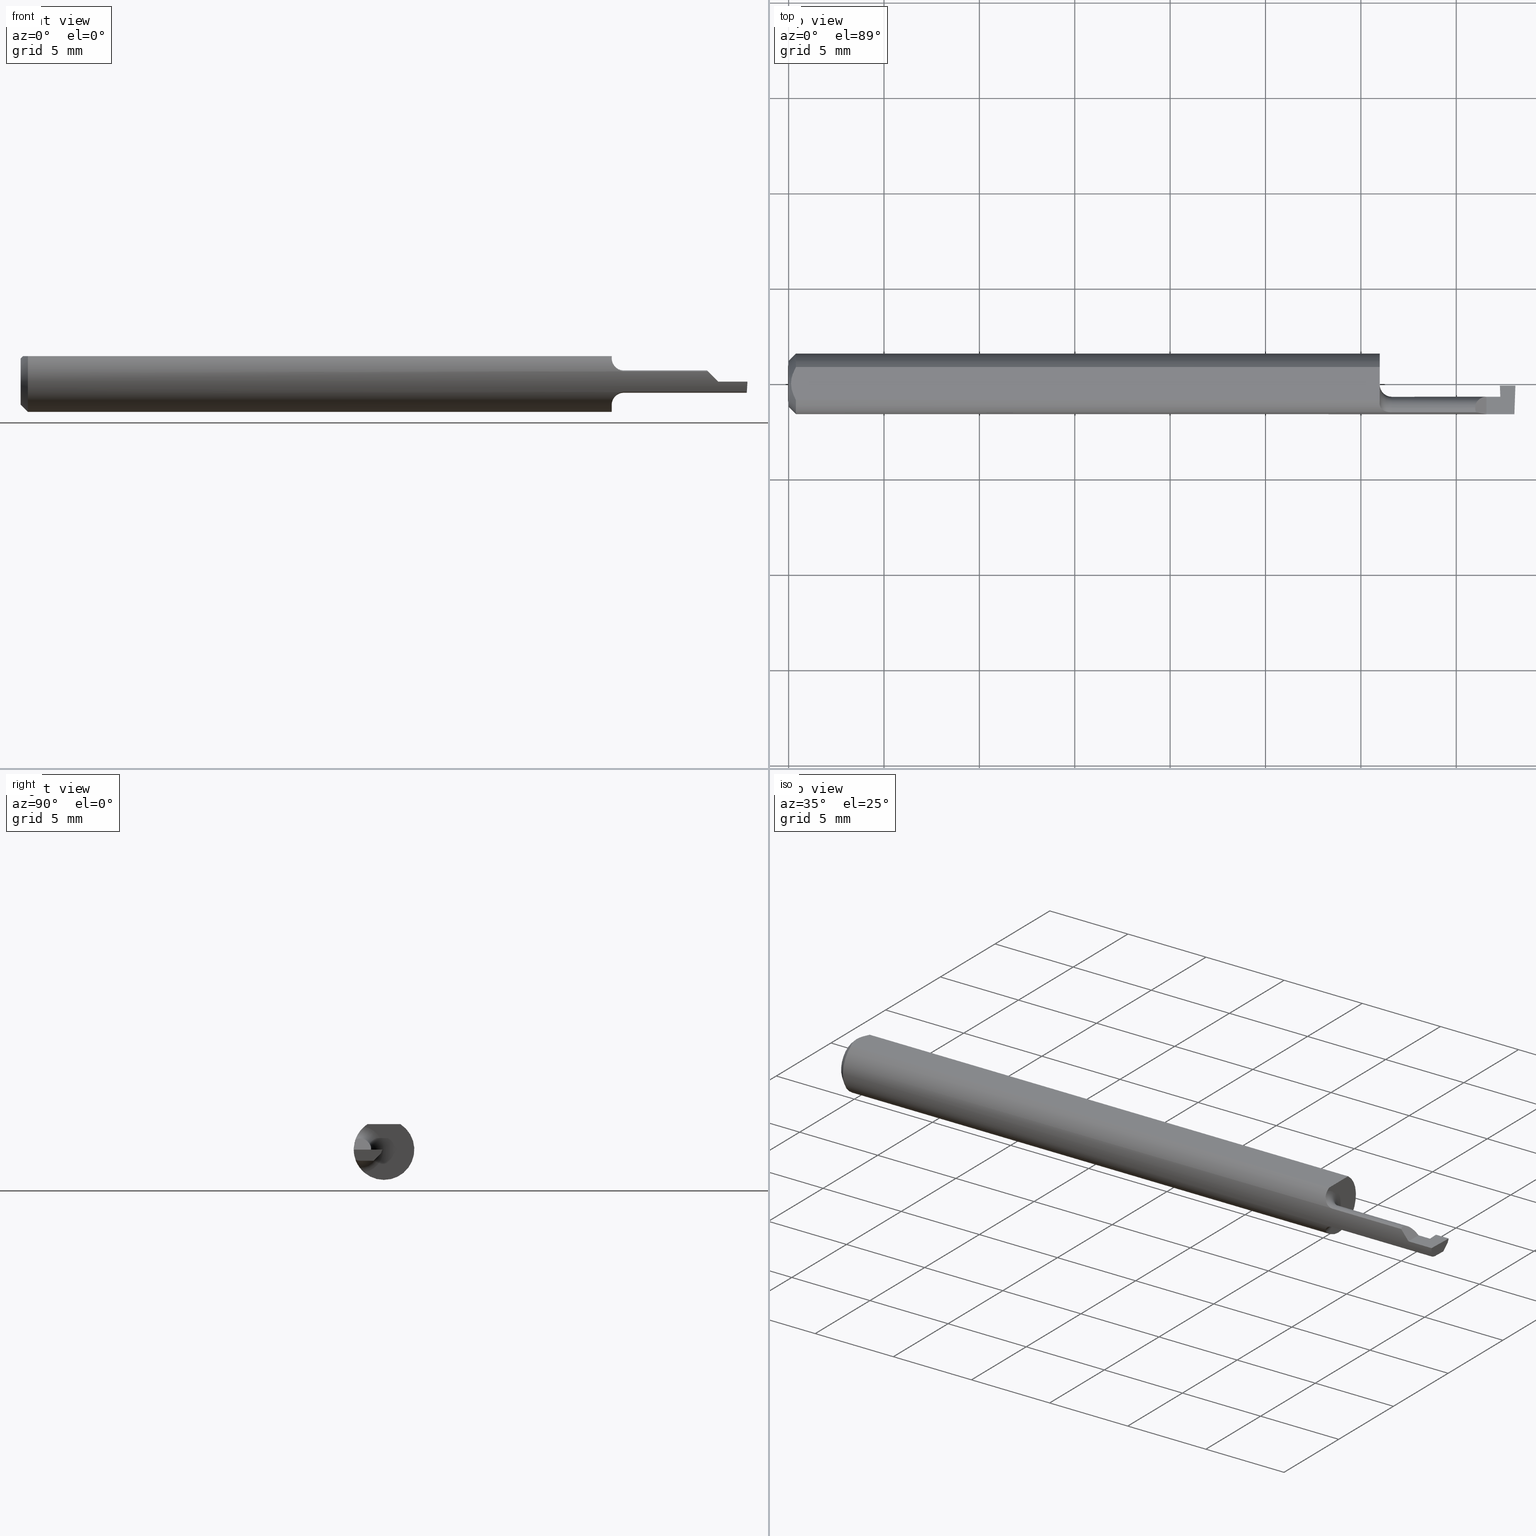
[diagram: canonical four-view strip — front | top / right | iso, engineering-drawing reading convention]
A machine part, canonical four-view strip (front | top / right | iso — engineering-drawing reading convention). The complete STEP part file that produces these views, byte-faithful:
ISO-10303-21;
HEADER;
FILE_DESCRIPTION (( 'STEP AP203' ),
    '1' );
FILE_NAME ('220554-GT031-4.STEP',
    '2024-07-12T18:00:18',
    ( '' ),
    ( '' ),
    'SwSTEP 2.0',
    'SolidWorks 2024',
    '' );
FILE_SCHEMA (( 'CONFIG_CONTROL_DESIGN' ));
ENDSEC;

DATA;
#1 = ORIENTED_EDGE ( 'NONE', *, *, #558, .F. ) ;
#2 = CARTESIAN_POINT ( 'NONE',  ( 1.220000000000000195, 0.07349999999999999589, 0.000000000000000000 ) ) ;
#3 = FACE_OUTER_BOUND ( 'NONE', #206, .T. ) ;
#4 = EDGE_CURVE ( 'NONE', #184, #454, #106, .T. ) ;
#5 = FACE_OUTER_BOUND ( 'NONE', #340, .T. ) ;
#6 = EDGE_CURVE ( 'NONE', #302, #68, #17, .T. ) ;
#7 = CARTESIAN_POINT ( 'NONE',  ( 1.469608973969656729, 0.05811540449146365001, -0.02300000000000001349 ) ) ;
#8 = VECTOR ( 'NONE', #436, 39.37007874015748143 ) ;
#9 = CARTESIAN_POINT ( 'NONE',  ( 1.497584964514770078, -0.05590579956362994041, -0.02232605334347043113 ) ) ;
#10 = DIRECTION ( 'NONE',  ( -0.7071067811865461294, 0.000000000000000000, 0.7071067811865489050 ) ) ;
#11 = CC_DESIGN_DATE_AND_TIME_ASSIGNMENT ( #145, #687, ( #585 ) ) ;
#12 = AXIS2_PLACEMENT_3D ( 'NONE', #531, #46, #538 ) ;
#13 = CARTESIAN_POINT ( 'NONE',  ( 1.499863463850860112, -0.004823293866947624131, -0.003447298382161623643 ) ) ;
#14 = CARTESIAN_POINT ( 'NONE',  ( 0.01499999999999999944, -0.03391164991562636150, 0.05249999999999998418 ) ) ;
#15 = VERTEX_POINT ( 'NONE', #532 ) ;
#16 = APPROVAL_STATUS ( 'not_yet_approved' ) ;
#17 = B_SPLINE_CURVE_WITH_KNOTS ( 'NONE', 3,
 ( #103, #485, #470, #208, #318, #148 ),
 .UNSPECIFIED., .F., .F.,
 ( 4, 2, 4 ),
 ( 0.0009797930073890425730, 0.001428868798926340253, 0.001877944590463637717 ),
 .UNSPECIFIED. ) ;
#18 = FACE_OUTER_BOUND ( 'NONE', #472, .T. ) ;
#19 = CC_DESIGN_APPROVAL ( #674, ( #621 ) ) ;
#20 = VERTEX_POINT ( 'NONE', #645 ) ;
#21 = CALENDAR_DATE ( 2024, 12, 7 ) ;
#22 = CARTESIAN_POINT ( 'NONE',  ( 1.418992327257652342, -0.05886363636363636798, 0.02100767274234790691 ) ) ;
#23 = ORIENTED_EDGE ( 'NONE', *, *, #315, .F. ) ;
#24 = AXIS2_PLACEMENT_3D ( 'NONE', #90, #157, #418 ) ;
#25 = PERSON_AND_ORGANIZATION ( #467, #31 ) ;
#26 = LINE ( 'NONE', #241, #252 ) ;
#27 = EDGE_LOOP ( 'NONE', ( #553, #540, #614, #571, #151 ) ) ;
#28 = CARTESIAN_POINT ( 'NONE',  ( 1.244999999999999885, -0.05886363636363634022, -0.02100767274234791038 ) ) ;
#29 = ADVANCED_FACE ( 'NONE', ( #703 ), #214, .T. ) ;
#30 = ORIENTED_EDGE ( 'NONE', *, *, #691, .F. ) ;
#31 = ORGANIZATION ( 'UNSPECIFIED', 'UNSPECIFIED', '' ) ;
#32 = DIRECTION ( 'NONE',  ( 1.000000000000000000, -0.000000000000000000, -0.000000000000000000 ) ) ;
#33 = LINE ( 'NONE', #570, #78 ) ;
#34 = VERTEX_POINT ( 'NONE', #92 ) ;
#35 = CARTESIAN_POINT ( 'NONE',  ( 1.469272891122366254, -0.02649999999999999925, -0.01347308806541881558 ) ) ;
#36 = EDGE_LOOP ( 'NONE', ( #122, #356, #631, #700, #344, #144, #30, #125, #392, #528, #513, #460, #327, #89, #622, #289 ) ) ;
#37 = EDGE_CURVE ( 'NONE', #454, #34, #325, .T. ) ;
#38 = DIRECTION ( 'NONE',  ( -0.000000000000000000, 1.000000000000000000, 1.224646799147353207E-16 ) ) ;
#39 = CARTESIAN_POINT ( 'NONE',  ( 1.417000000000000259, -0.03602691193458118502, 0.02299999999999999961 ) ) ;
#40 =( GEOMETRIC_REPRESENTATION_CONTEXT ( 3 ) GLOBAL_UNCERTAINTY_ASSIGNED_CONTEXT ( ( #306 ) ) GLOBAL_UNIT_ASSIGNED_CONTEXT ( ( #564, #140, #568 ) ) REPRESENTATION_CONTEXT ( 'NONE', 'WORKASPACE' ) );
#41 = DIRECTION ( 'NONE',  ( 1.000000000000000000, 0.000000000000000000, 0.000000000000000000 ) ) ;
#42 = CARTESIAN_POINT ( 'NONE',  ( 1.220000000000000195, -0.04950000000000000233, 0.02299999999999999961 ) ) ;
#43 = CARTESIAN_POINT ( 'NONE',  ( 1.400000000000000133, -0.003500000000000001808, -8.064299172385322426E-18 ) ) ;
#44 = VECTOR ( 'NONE', #675, 39.37007874015748143 ) ;
#45 = CARTESIAN_POINT ( 'NONE',  ( 1.220000000000000195, -0.04950000000000000233, 0.000000000000000000 ) ) ;
#46 = DIRECTION ( 'NONE',  ( -1.000000000000000000, -0.000000000000000000, -0.000000000000000000 ) ) ;
#47 = ORIENTED_EDGE ( 'NONE', *, *, #500, .F. ) ;
#48 = ORIENTED_EDGE ( 'NONE', *, *, #311, .T. ) ;
#49 = LOCAL_TIME ( 11, 0, 18.00000000000000000, #444 ) ;
#50 = CARTESIAN_POINT ( 'NONE',  ( 1.497516218632006790, -0.05886363636363634716, -0.02100767274234790691 ) ) ;
#51 = CARTESIAN_POINT ( 'NONE',  ( 1.418992327257652342, -0.05886363636363636798, 0.02100767274234790691 ) ) ;
#52 = VECTOR ( 'NONE', #292, 39.37007874015748143 ) ;
#53 = ORIENTED_EDGE ( 'NONE', *, *, #663, .T. ) ;
#54 = DIRECTION ( 'NONE',  ( -0.03487823687995614264, 0.9993915692020548525, -1.586126049015816662E-16 ) ) ;
#55 = EDGE_CURVE ( 'NONE', #651, #138, #287, .T. ) ;
#56 = CARTESIAN_POINT ( 'NONE',  ( 1.469605376252392182, -1.494890182199352324, -0.02478958664967750511 ) ) ;
#57 = VECTOR ( 'NONE', #331, 39.37007874015748143 ) ;
#58 = EDGE_CURVE ( 'NONE', #119, #187, #310, .T. ) ;
#59 = DIRECTION ( 'NONE',  ( 0.000000000000000000, 0.000000000000000000, -1.000000000000000000 ) ) ;
#60 = CARTESIAN_POINT ( 'NONE',  ( 1.400000000000000133, -0.006570912280283336404, -0.008000000000000010575 ) ) ;
#61 = CARTESIAN_POINT ( 'NONE',  ( 1.356500000000000039, -0.05886363636363634716, -0.02100767274234790691 ) ) ;
#62 = CARTESIAN_POINT ( 'NONE',  ( 0.009676924495017957123, -0.02328413057436891712, 0.05250000000000001193 ) ) ;
#63 = CC_DESIGN_PERSON_AND_ORGANIZATION_ASSIGNMENT ( #255, #373, ( #280 ) ) ;
#64 = AXIS2_PLACEMENT_3D ( 'NONE', #565, #397, #512 ) ;
#65 = DIRECTION ( 'NONE',  ( -0.03487823687206274836, -0.001217974870087546639, 0.9993908270190957621 ) ) ;
#66 = DIRECTION ( 'NONE',  ( -0.7071067811865489050, 0.000000000000000000, -0.7071067811865461294 ) ) ;
#67 = B_SPLINE_CURVE_WITH_KNOTS ( 'NONE', 3,
 ( #659, #607, #603, #495, #112, #334 ),
 .UNSPECIFIED., .F., .F.,
 ( 4, 2, 4 ),
 ( 0.0003511697577770753263, 0.0007558328471938529497, 0.001160495936610630519 ),
 .UNSPECIFIED. ) ;
#68 = VERTEX_POINT ( 'NONE', #649 ) ;
#69 = CIRCLE ( 'NONE', #288, 0.02299999999999999961 ) ;
#70 = LINE ( 'NONE', #162, #239 ) ;
#71 = CARTESIAN_POINT ( 'NONE',  ( 1.497608834546441781, -0.06126942711424129134, -0.01426663133107638343 ) ) ;
#72 = ORIENTED_EDGE ( 'NONE', *, *, #422, .T. ) ;
#73 = APPROVAL_ROLE ( '' ) ;
#74 = DIRECTION ( 'NONE',  ( 0.000000000000000000, 0.000000000000000000, -1.000000000000000000 ) ) ;
#75 = VERTEX_POINT ( 'NONE', #158 ) ;
#76 = CARTESIAN_POINT ( 'NONE',  ( 1.499683146315743398, -0.006570912280283337271, -0.008000000000000012310 ) ) ;
#77 = ORIENTED_EDGE ( 'NONE', *, *, #37, .F. ) ;
#78 = VECTOR ( 'NONE', #186, 39.37007874015748143 ) ;
#79 = MECHANICAL_CONTEXT ( 'NONE', #492, 'mechanical' ) ;
#80 = EDGE_CURVE ( 'NONE', #34, #254, #707, .T. ) ;
#81 = CARTESIAN_POINT ( 'NONE',  ( 1.223742250285846378, -0.05260163983985807062, -0.03413395806547178668 ) ) ;
#82 = ORIENTED_EDGE ( 'NONE', *, *, #80, .F. ) ;
#83 = DATE_AND_TIME ( #353, #701 ) ;
#84 = LINE ( 'NONE', #620, #166 ) ;
#85 = ORIENTED_EDGE ( 'NONE', *, *, #453, .F. ) ;
#86 = PERSON_AND_ORGANIZATION ( #467, #31 ) ;
#87 = AXIS2_PLACEMENT_3D ( 'NONE', #466, #364, #314 ) ;
#88 = CARTESIAN_POINT ( 'NONE',  ( 1.496631624499075164, -0.06245432188394240552, -0.04998286624877785328 ) ) ;
#89 = ORIENTED_EDGE ( 'NONE', *, *, #335, .F. ) ;
#90 = CARTESIAN_POINT ( 'NONE',  ( 1.244999999999999885, -0.04950000000000000233, 0.000000000000000000 ) ) ;
#91 = ADVANCED_BREP_SHAPE_REPRESENTATION ( '220554-GT031-4', ( #321, #433 ), #40 ) ;
#92 = CARTESIAN_POINT ( 'NONE',  ( 1.497791001293266477, -0.04949999999999999539, -0.02299999999999999614 ) ) ;
#93 = EDGE_CURVE ( 'NONE', #296, #679, #660, .T. ) ;
#94 = CARTESIAN_POINT ( 'NONE',  ( 1.469743911843602868, -0.003439101256495625050, -0.04996954135095477839 ) ) ;
#95 = ORIENTED_EDGE ( 'NONE', *, *, #428, .F. ) ;
#96 = SHAPE_DEFINITION_REPRESENTATION ( #480, #91 ) ;
#97 = CARTESIAN_POINT ( 'NONE',  ( 1.468802687828234754, -0.02650000000000001660, 1.942005867998327689E-18 ) ) ;
#98 = VECTOR ( 'NONE', #539, 39.37007874015748143 ) ;
#99 = EDGE_LOOP ( 'NONE', ( #503, #425, #537, #508 ) ) ;
#100 = EDGE_CURVE ( 'NONE', #611, #672, #650, .T. ) ;
#101 = CARTESIAN_POINT ( 'NONE',  ( 1.220000000000000195, 0.000000000000000000, 0.000000000000000000 ) ) ;
#102 = AXIS2_PLACEMENT_3D ( 'NONE', #114, #547, #291 ) ;
#103 = CARTESIAN_POINT ( 'NONE',  ( 0.01499999999999999771, 0.03391164991562633374, 0.05250000000000000500 ) ) ;
#104 = ORIENTED_EDGE ( 'NONE', *, *, #563, .T. ) ;
#105 = DIRECTION ( 'NONE',  ( -1.244982809612622067E-16, 0.000000000000000000, -1.000000000000000000 ) ) ;
#106 = LINE ( 'NONE', #377, #199 ) ;
#107 = ORIENTED_EDGE ( 'NONE', *, *, #282, .F. ) ;
#108 = DIRECTION ( 'NONE',  ( 1.000000000000000000, 0.000000000000000000, 0.000000000000000000 ) ) ;
#109 = CARTESIAN_POINT ( 'NONE',  ( 0.01216049014016022493, -0.02867836381244416935, 0.05250000000000000500 ) ) ;
#110 = EDGE_CURVE ( 'NONE', #296, #238, #526, .T. ) ;
#111 = LINE ( 'NONE', #222, #511 ) ;
#112 = CARTESIAN_POINT ( 'NONE',  ( 1.239561149086641167, -0.05886363636377026087, 0.02100767274197276255 ) ) ;
#113 = AXIS2_PLACEMENT_3D ( 'NONE', #101, #320, #597 ) ;
#114 = CARTESIAN_POINT ( 'NONE',  ( 1.500000000000000222, 0.05811411188343153927, -0.02300000000000001349 ) ) ;
#115 = CARTESIAN_POINT ( 'NONE',  ( 1.222018996248180223, -0.04950000000000041867, 0.03815756805667903234 ) ) ;
#116 = DIRECTION ( 'NONE',  ( 1.000000000000000000, 0.000000000000000000, 0.000000000000000000 ) ) ;
#117 = VECTOR ( 'NONE', #32, 39.37007874015748143 ) ;
#118 = FACE_OUTER_BOUND ( 'NONE', #99, .T. ) ;
#119 = VERTEX_POINT ( 'NONE', #556 ) ;
#120 = CARTESIAN_POINT ( 'NONE',  ( 0.01499999999999999944, 0.000000000000000000, -0.06250000000000000000 ) ) ;
#121 = ADVANCED_FACE ( 'NONE', ( #221 ), #337, .F. ) ;
#122 = ORIENTED_EDGE ( 'NONE', *, *, #139, .T. ) ;
#123 = APPLICATION_PROTOCOL_DEFINITION ( 'international standard', 'config_control_design', 1994, #492 ) ;
#124 = DIRECTION ( 'NONE',  ( 0.000000000000000000, 0.000000000000000000, 1.000000000000000000 ) ) ;
#125 = ORIENTED_EDGE ( 'NONE', *, *, #422, .F. ) ;
#126 = ADVANCED_FACE ( 'NONE', ( #18 ), #277, .F. ) ;
#127 = CARTESIAN_POINT ( 'NONE',  ( 1.467861796697768284, -0.002402508794499298196, 0.002859062338047485292 ) ) ;
#128 = LINE ( 'NONE', #237, #44 ) ;
#129 = CC_DESIGN_APPROVAL ( #267, ( #585 ) ) ;
#130 = ORIENTED_EDGE ( 'NONE', *, *, #375, .F. ) ;
#131 = ADVANCED_FACE ( 'NONE', ( #552 ), #233, .F. ) ;
#132 =( LENGTH_UNIT ( ) NAMED_UNIT ( * ) SI_UNIT ( $, .METRE. ) );
#133 = CARTESIAN_POINT ( 'NONE',  ( 1.469604396811383440, -0.04950000000000000233, -0.02299999999999999961 ) ) ;
#134 = EDGE_LOOP ( 'NONE', ( #486, #429, #48, #699, #389 ) ) ;
#135 = VECTOR ( 'NONE', #379, 39.37007874015748143 ) ;
#136 = PERSON_AND_ORGANIZATION_ROLE ( 'creator' ) ;
#137 = CARTESIAN_POINT ( 'NONE',  ( 1.222018996248180889, -0.04950000000000030070, -0.03815756805667848417 ) ) ;
#138 = VERTEX_POINT ( 'NONE', #671 ) ;
#139 = EDGE_CURVE ( 'NONE', #416, #15, #525, .T. ) ;
#140 =( NAMED_UNIT ( * ) PLANE_ANGLE_UNIT ( ) SI_UNIT ( $, .RADIAN. ) );
#141 = DIRECTION ( 'NONE',  ( 0.000000000000000000, 0.000000000000000000, 1.000000000000000000 ) ) ;
#142 = ORIENTED_EDGE ( 'NONE', *, *, #458, .T. ) ;
#143 = LINE ( 'NONE', #153, #569 ) ;
#144 = ORIENTED_EDGE ( 'NONE', *, *, #213, .F. ) ;
#145 = DATE_AND_TIME ( #462, #623 ) ;
#146 = AXIS2_PLACEMENT_3D ( 'NONE', #541, #600, #494 ) ;
#147 = CARTESIAN_POINT ( 'NONE',  ( 1.220000000000000195, -0.04950000000000000233, 0.000000000000000000 ) ) ;
#148 = CARTESIAN_POINT ( 'NONE',  ( 0.004999999999989314207, 8.235553591830799656E-16, 0.05250000000000000500 ) ) ;
#149 = APPROVAL_DATE_TIME ( #468, #267 ) ;
#150 = DIRECTION ( 'NONE',  ( 0.000000000000000000, 0.000000000000000000, 1.000000000000000000 ) ) ;
#151 = ORIENTED_EDGE ( 'NONE', *, *, #311, .F. ) ;
#152 = ORIENTED_EDGE ( 'NONE', *, *, #691, .T. ) ;
#153 = CARTESIAN_POINT ( 'NONE',  ( 1.471402629758094660, -0.1009980330875088206, 3.560323435129999006E-18 ) ) ;
#154 = TOROIDAL_SURFACE ( 'NONE', #693, 0.04800000000000000100, 0.02499999999999993547 ) ;
#155 = DIRECTION ( 'NONE',  ( -1.000000000000000000, -0.000000000000000000, -0.000000000000000000 ) ) ;
#156 = ORIENTED_EDGE ( 'NONE', *, *, #402, .F. ) ;
#157 = DIRECTION ( 'NONE',  ( -1.000000000000000000, -0.000000000000000000, -0.000000000000000000 ) ) ;
#158 = CARTESIAN_POINT ( 'NONE',  ( 1.469605376252391959, -0.02647196950256633374, -0.02299999999999999267 ) ) ;
#159 = EDGE_LOOP ( 'NONE', ( #398, #362, #557, #689, #573 ) ) ;
#160 = FACE_OUTER_BOUND ( 'NONE', #271, .T. ) ;
#161 = EDGE_LOOP ( 'NONE', ( #351, #194, #1, #451, #474 ) ) ;
#162 = CARTESIAN_POINT ( 'NONE',  ( 1.220000000000000195, -0.06250000000000001388, 0.05250000000000000500 ) ) ;
#163 = EDGE_CURVE ( 'NONE', #323, #348, #329, .T. ) ;
#164 = CARTESIAN_POINT ( 'NONE',  ( 1.244999999999999885, -0.04950000000000000233, 0.000000000000000000 ) ) ;
#165 = DIRECTION ( 'NONE',  ( -0.03489949670250112185, -0.9993908270190957621, 0.000000000000000000 ) ) ;
#166 = VECTOR ( 'NONE', #298, 39.37007874015748854 ) ;
#167 = CARTESIAN_POINT ( 'NONE',  ( 1.440000000000000169, -0.06250000000000000000, 7.469896857675718968E-18 ) ) ;
#168 = DIRECTION ( 'NONE',  ( 0.000000000000000000, 0.000000000000000000, -1.000000000000000000 ) ) ;
#169 = EDGE_LOOP ( 'NONE', ( #534, #77, #130, #346, #592, #305, #426 ) ) ;
#170 = EDGE_CURVE ( 'NONE', #68, #672, #355, .T. ) ;
#171 = CARTESIAN_POINT ( 'NONE',  ( 1.470546600267760518, -0.02643910123568555745, -0.04996955842635109057 ) ) ;
#172 = DIRECTION ( 'NONE',  ( 0.03487821100175973049, 0.000000000000000000, -0.9993915701051898637 ) ) ;
#173 = B_SPLINE_CURVE_WITH_KNOTS ( 'NONE', 3,
 ( #137, #572, #616, #345 ),
 .UNSPECIFIED., .F., .F.,
 ( 4, 4 ),
 ( 0.0008123906839535029569, 0.001133716745525399552 ),
 .UNSPECIFIED. ) ;
#174 = VERTEX_POINT ( 'NONE', #330 ) ;
#175 = CARTESIAN_POINT ( 'NONE',  ( 1.220000000000000195, -0.04093434343434342731, 0.04722954083620995586 ) ) ;
#176 = DIRECTION ( 'NONE',  ( 0.000000000000000000, 0.000000000000000000, 1.000000000000000000 ) ) ;
#177 = ORIENTED_EDGE ( 'NONE', *, *, #510, .T. ) ;
#178 = AXIS2_PLACEMENT_3D ( 'NONE', #702, #590, #586 ) ;
#179 = ADVANCED_FACE ( 'NONE', ( #227 ), #316, .T. ) ;
#180 = DIRECTION ( 'NONE',  ( 0.000000000000000000, 0.000000000000000000, 1.000000000000000000 ) ) ;
#181 = CARTESIAN_POINT ( 'NONE',  ( 0.000000000000000000, 0.000000000000000000, -0.04749999999999999362 ) ) ;
#182 = EDGE_CURVE ( 'NONE', #679, #401, #488, .T. ) ;
#183 = ADVANCED_FACE ( 'NONE', ( #3 ), #154, .F. ) ;
#184 = VERTEX_POINT ( 'NONE', #610 ) ;
#185 = DIRECTION ( 'NONE',  ( -0.04508216391661056671, 0.3580035905404790886, 0.9326312388381169383 ) ) ;
#186 = DIRECTION ( 'NONE',  ( 0.7071067811865474617, 0.000000000000000000, -0.7071067811865475727 ) ) ;
#187 = VERTEX_POINT ( 'NONE', #223 ) ;
#188 = APPROVAL ( #677, 'UNSPECIFIED' ) ;
#189 = CARTESIAN_POINT ( 'NONE',  ( 1.417000000000000259, -0.05273835235033009355, 0.02299999999999999961 ) ) ;
#190 = ORIENTED_EDGE ( 'NONE', *, *, #608, .F. ) ;
#191 = AXIS2_PLACEMENT_3D ( 'NONE', #521, #38, #648 ) ;
#192 = CARTESIAN_POINT ( 'NONE',  ( 1.440000000000000169, -0.02650000000000000966, 7.469896857675718968E-18 ) ) ;
#193 = DIRECTION ( 'NONE',  ( -1.000000000000000000, -0.000000000000000000, -0.000000000000000000 ) ) ;
#194 = ORIENTED_EDGE ( 'NONE', *, *, #617, .F. ) ;
#195 = SECURITY_CLASSIFICATION_LEVEL ( 'unclassified' ) ;
#196 = DESIGN_CONTEXT ( 'detailed design', #580, 'design' ) ;
#197 = DIRECTION ( 'NONE',  ( 1.000000000000000000, 0.000000000000000000, -0.000000000000000000 ) ) ;
#198 = VERTEX_POINT ( 'NONE', #667 ) ;
#199 = VECTOR ( 'NONE', #380, 39.37007874015748143 ) ;
#200 = DIRECTION ( 'NONE',  ( -1.000000000000000000, -0.000000000000000000, -0.000000000000000000 ) ) ;
#201 = CARTESIAN_POINT ( 'NONE',  ( 1.440000000000000169, -0.02650000000000000966, 7.469896857675718968E-18 ) ) ;
#202 = B_SPLINE_CURVE_WITH_KNOTS ( 'NONE', 3,
 ( #28, #560, #678, #459, #81, #301 ),
 .UNSPECIFIED., .F., .F.,
 ( 4, 2, 4 ),
 ( 1.965804573220295593E-07, 0.0004062936322054086914, 0.0008123906839535029569 ),
 .UNSPECIFIED. ) ;
#203 = PERSON_AND_ORGANIZATION ( #467, #31 ) ;
#204 = VECTOR ( 'NONE', #514, 39.37007874015748854 ) ;
#205 = DIRECTION ( 'NONE',  ( 0.000000000000000000, 0.000000000000000000, -1.000000000000000000 ) ) ;
#206 = EDGE_LOOP ( 'NONE', ( #47, #595, #85, #152, #142, #378 ) ) ;
#207 = CARTESIAN_POINT ( 'NONE',  ( 1.220000000000000195, 0.03391164991562636150, 0.05250000000000000500 ) ) ;
#208 = CARTESIAN_POINT ( 'NONE',  ( 0.006063917085846147297, 0.01190810954070469288, 0.05250000000000001887 ) ) ;
#209 = CC_DESIGN_SECURITY_CLASSIFICATION ( #585, ( #280 ) ) ;
#210 = ORIENTED_EDGE ( 'NONE', *, *, #58, .F. ) ;
#211 = APPROVAL_ROLE ( '' ) ;
#212 = CARTESIAN_POINT ( 'NONE',  ( 1.500000000000000222, -0.06250000000000001388, 0.05250000000000000500 ) ) ;
#213 = EDGE_CURVE ( 'NONE', #246, #174, #67, .T. ) ;
#214 = CYLINDRICAL_SURFACE ( 'NONE', #224, 0.02299999999999999961 ) ;
#215 = ORIENTED_EDGE ( 'NONE', *, *, #583, .F. ) ;
#216 = CARTESIAN_POINT ( 'NONE',  ( 0.01499999999999999944, -0.03391164991562636150, 0.05249999999999998418 ) ) ;
#217 = CARTESIAN_POINT ( 'NONE',  ( 1.500000000000000222, -0.04950000000000000233, -0.02299999999999999614 ) ) ;
#218 = ORIENTED_EDGE ( 'NONE', *, *, #315, .T. ) ;
#219 = PLANE ( 'NONE',  #673 ) ;
#220 = B_SPLINE_CURVE_WITH_KNOTS ( 'NONE', 3,
 ( #175, #393, #624, #349 ),
 .UNSPECIFIED., .F., .F.,
 ( 4, 4 ),
 ( 3.010157611159497900E-05, 0.0003511697577770753263 ),
 .UNSPECIFIED. ) ;
#221 = FACE_OUTER_BOUND ( 'NONE', #231, .T. ) ;
#222 = CARTESIAN_POINT ( 'NONE',  ( 0.000000000000000000, 0.03391164991562636150, 0.05249999999999998418 ) ) ;
#223 = CARTESIAN_POINT ( 'NONE',  ( 1.499999999999999778, -0.003500000000000010481, -5.202249597309876535E-17 ) ) ;
#224 = AXIS2_PLACEMENT_3D ( 'NONE', #45, #582, #697 ) ;
#225 = ADVANCED_FACE ( 'NONE', ( #118 ), #546, .F. ) ;
#226 = PLANE ( 'NONE',  #332 ) ;
#227 = FACE_OUTER_BOUND ( 'NONE', #134, .T. ) ;
#228 = VECTOR ( 'NONE', #490, 39.37007874015748143 ) ;
#229 = EDGE_CURVE ( 'NONE', #254, #75, #491, .T. ) ;
#230 = CARTESIAN_POINT ( 'NONE',  ( 1.220000000000000195, -0.02650000000000000272, 3.485951866915341887E-17 ) ) ;
#231 = EDGE_LOOP ( 'NONE', ( #447, #421, #657, #654 ) ) ;
#232 = APPROVAL_ROLE ( '' ) ;
#233 = PLANE ( 'NONE',  #446 ) ;
#234 = EDGE_LOOP ( 'NONE', ( #627, #464, #210, #536, #443, #107 ) ) ;
#235 = VECTOR ( 'NONE', #155, 39.37007874015748143 ) ;
#236 = APPROVAL_DATE_TIME ( #670, #188 ) ;
#237 = CARTESIAN_POINT ( 'NONE',  ( 2.324973294346407873E-32, -0.06250000000000000000, 1.867474214418933224E-16 ) ) ;
#238 = VERTEX_POINT ( 'NONE', #662 ) ;
#239 = VECTOR ( 'NONE', #545, 39.37007874015748143 ) ;
#240 = CARTESIAN_POINT ( 'NONE',  ( 1.400000000000000133, -0.006570912280283336404, -0.008000000000000010575 ) ) ;
#241 = CARTESIAN_POINT ( 'NONE',  ( 1.440000000000000169, -0.1000000000000000056, 7.469896857675718968E-18 ) ) ;
#242 = ORIENTED_EDGE ( 'NONE', *, *, #690, .T. ) ;
#243 = APPLICATION_PROTOCOL_DEFINITION ( 'international standard', 'config_control_design', 1994, #580 ) ;
#244 = CARTESIAN_POINT ( 'NONE',  ( 0.000000000000000000, 6.735557395310443132E-18, 0.04749999999999999362 ) ) ;
#245 = LOCAL_TIME ( 11, 0, 18.00000000000000000, #455 ) ;
#246 = VERTEX_POINT ( 'NONE', #115 ) ;
#247 = VECTOR ( 'NONE', #266, 39.37007874015748143 ) ;
#248 = LENGTH_MEASURE_WITH_UNIT ( LENGTH_MEASURE( 0.02539999999999999897 ), #132 );
#249 = DIRECTION ( 'NONE',  ( 0.000000000000000000, 0.000000000000000000, 1.000000000000000000 ) ) ;
#250 = VERTEX_POINT ( 'NONE', #76 ) ;
#251 = EDGE_CURVE ( 'NONE', #138, #296, #404, .T. ) ;
#252 = VECTOR ( 'NONE', #575, 39.37007874015748143 ) ;
#253 = CARTESIAN_POINT ( 'NONE',  ( 1.468802687828234754, -0.02650000000000001660, 1.942005867998327689E-18 ) ) ;
#254 = VERTEX_POINT ( 'NONE', #133 ) ;
#255 = PERSON_AND_ORGANIZATION ( #467, #31 ) ;
#256 = DIRECTION ( 'NONE',  ( 0.000000000000000000, 0.000000000000000000, 1.000000000000000000 ) ) ;
#257 = ORIENTED_EDGE ( 'NONE', *, *, #163, .T. ) ;
#258 = ADVANCED_FACE ( 'NONE', ( #632 ), #284, .T. ) ;
#259 = COORDINATED_UNIVERSAL_TIME_OFFSET ( 8, 0, .BEHIND. ) ;
#260 = ADVANCED_FACE ( 'NONE', ( #408 ), #347, .T. ) ;
#261 = ADVANCED_FACE ( 'NONE', ( #452 ), #369, .F. ) ;
#262 = DIRECTION ( 'NONE',  ( 0.03489949670250112185, 0.9993908270190957621, -4.341950059913920497E-18 ) ) ;
#263 = EDGE_LOOP ( 'NONE', ( #423, #576, #686 ) ) ;
#264 = AXIS2_PLACEMENT_3D ( 'NONE', #577, #105, #272 ) ;
#265 = DIRECTION ( 'NONE',  ( 0.000000000000000000, -0.3583679495453010455, -0.9335804264972014099 ) ) ;
#266 = DIRECTION ( 'NONE',  ( 1.000000000000000000, -0.000000000000000000, -0.000000000000000000 ) ) ;
#267 = APPROVAL ( #523, 'UNSPECIFIED' ) ;
#268 = PERSON_AND_ORGANIZATION ( #467, #31 ) ;
#269 = DIRECTION ( 'NONE',  ( 0.000000000000000000, -0.000000000000000000, 1.000000000000000000 ) ) ;
#270 = VERTEX_POINT ( 'NONE', #357 ) ;
#271 = EDGE_LOOP ( 'NONE', ( #561, #257 ) ) ;
#272 = DIRECTION ( 'NONE',  ( -1.000000000000000000, 0.000000000000000000, 1.244982809612622067E-16 ) ) ;
#273 = ORIENTED_EDGE ( 'NONE', *, *, #80, .T. ) ;
#274 = EDGE_LOOP ( 'NONE', ( #293, #82, #190, #633, #156 ) ) ;
#275 = DIRECTION ( 'NONE',  ( -1.000000000000000000, -0.000000000000000000, -0.000000000000000000 ) ) ;
#276 = AXIS2_PLACEMENT_3D ( 'NONE', #94, #313, #487 ) ;
#277 = PLANE ( 'NONE',  #636 ) ;
#278 = CARTESIAN_POINT ( 'NONE',  ( 1.497677915537307447, -0.05273835235033009355, -0.02300000000000000308 ) ) ;
#279 = DIRECTION ( 'NONE',  ( 0.000000000000000000, -0.7071067811865486830, -0.7071067811865464625 ) ) ;
#280 = PRODUCT_DEFINITION_FORMATION_WITH_SPECIFIED_SOURCE ( 'ANY', '', #596, .NOT_KNOWN. ) ;
#281 = DIRECTION ( 'NONE',  ( -1.000000000000000000, -0.000000000000000000, -0.000000000000000000 ) ) ;
#282 = EDGE_CURVE ( 'NONE', #651, #679, #26, .T. ) ;
#283 = DIRECTION ( 'NONE',  ( 1.000000000000000000, 0.000000000000000000, 0.000000000000000000 ) ) ;
#284 = CONICAL_SURFACE ( 'NONE', #681, 0.06250000000000000000, 0.7853981633974483900 ) ;
#285 = LINE ( 'NONE', #551, #449 ) ;
#286 = CARTESIAN_POINT ( 'NONE',  ( 1.497516218632006790, -0.05886363636363634716, -0.02100767274234790691 ) ) ;
#287 =( BOUNDED_CURVE ( )  B_SPLINE_CURVE ( 3, ( #598, #641, #371, #51 ),
 .UNSPECIFIED., .F., .F. ) 
 B_SPLINE_CURVE_WITH_KNOTS ( ( 4, 4 ),
 ( 4.712388980384689674, 5.055186081087965633 ),
 .UNSPECIFIED. ) 
 CURVE ( )  GEOMETRIC_REPRESENTATION_ITEM ( )  RATIONAL_B_SPLINE_CURVE ( ( 1.000000000000000000, 0.9902314620528109845, 0.9902314620528109845, 1.000000000000000000 ) ) 
 REPRESENTATION_ITEM ( '' )  );
#288 = AXIS2_PLACEMENT_3D ( 'NONE', #361, #639, #370 ) ;
#289 = ORIENTED_EDGE ( 'NONE', *, *, #643, .F. ) ;
#290 = EDGE_CURVE ( 'NONE', #322, #705, #202, .T. ) ;
#291 = DIRECTION ( 'NONE',  ( 0.000000000000000000, -1.000000000000000000, 1.586599532494064286E-16 ) ) ;
#292 = DIRECTION ( 'NONE',  ( -1.000000000000000000, -0.000000000000000000, -0.000000000000000000 ) ) ;
#293 = ORIENTED_EDGE ( 'NONE', *, *, #563, .F. ) ;
#294 = CARTESIAN_POINT ( 'NONE',  ( 1.222018996248180889, -0.04950000000000030070, -0.03815756805667848417 ) ) ;
#295 = CARTESIAN_POINT ( 'NONE',  ( 1.417673946656529793, -0.05590579956362994735, 0.02232605334347042073 ) ) ;
#296 = VERTEX_POINT ( 'NONE', #688 ) ;
#297 = VECTOR ( 'NONE', #542, 39.37007874015748143 ) ;
#298 = DIRECTION ( 'NONE',  ( -0.04317993108638051164, -0.7064472710512010867, -0.7064472710511988662 ) ) ;
#299 = ORIENTED_EDGE ( 'NONE', *, *, #229, .F. ) ;
#300 = CIRCLE ( 'NONE', #24, 0.02299999999999999961 ) ;
#301 = CARTESIAN_POINT ( 'NONE',  ( 1.222018996248180889, -0.04950000000000030070, -0.03815756805667848417 ) ) ;
#302 = VERTEX_POINT ( 'NONE', #307 ) ;
#303 = DATE_TIME_ROLE ( 'creation_date' ) ;
#304 = CARTESIAN_POINT ( 'NONE',  ( 0.000000000000000000, 0.000000000000000000, 0.000000000000000000 ) ) ;
#305 = ORIENTED_EDGE ( 'NONE', *, *, #312, .F. ) ;
#306 = UNCERTAINTY_MEASURE_WITH_UNIT (LENGTH_MEASURE( 1.000000000000000082E-05 ), #564, 'distance_accuracy_value', 'NONE');
#307 = CARTESIAN_POINT ( 'NONE',  ( 0.01499999999999999771, 0.03391164991562633374, 0.05250000000000000500 ) ) ;
#308 = EDGE_LOOP ( 'NONE', ( #406, #647, #95, #53 ) ) ;
#309 = PLANE ( 'NONE',  #363 ) ;
#310 = LINE ( 'NONE', #522, #247 ) ;
#311 = EDGE_CURVE ( 'NONE', #348, #611, #33, .T. ) ;
#312 = EDGE_CURVE ( 'NONE', #15, #476, #354, .T. ) ;
#313 = DIRECTION ( 'NONE',  ( 0.9987827668610287368, 0.03485699000043690488, 0.03489949669461414605 ) ) ;
#314 = DIRECTION ( 'NONE',  ( 0.000000000000000000, 0.000000000000000000, 1.000000000000000000 ) ) ;
#315 = EDGE_CURVE ( 'NONE', #254, #401, #360, .T. ) ;
#316 = CONICAL_SURFACE ( 'NONE', #506, 0.06250000000000000000, 0.7853981633974483900 ) ;
#317 = FACE_OUTER_BOUND ( 'NONE', #308, .T. ) ;
#318 = CARTESIAN_POINT ( 'NONE',  ( 0.004999999999999040802, 0.005952453510029875015, 0.05249999999999999806 ) ) ;
#319 = CIRCLE ( 'NONE', #113, 0.06250000000000000000 ) ;
#320 = DIRECTION ( 'NONE',  ( 1.000000000000000000, 0.000000000000000000, 0.000000000000000000 ) ) ;
#321 = MANIFOLD_SOLID_BREP ( 'Front Angle', #400 ) ;
#322 = VERTEX_POINT ( 'NONE', #394 ) ;
#323 = VERTEX_POINT ( 'NONE', #244 ) ;
#324 = CARTESIAN_POINT ( 'NONE',  ( 1.220000000000000195, -0.04950000000000000233, 0.000000000000000000 ) ) ;
#325 = LINE ( 'NONE', #587, #98 ) ;
#326 = APPROVAL_PERSON_ORGANIZATION ( #86, #674, #73 ) ;
#327 = ORIENTED_EDGE ( 'NONE', *, *, #510, .F. ) ;
#328 = DIRECTION ( 'NONE',  ( 0.000000000000000000, 0.000000000000000000, -1.000000000000000000 ) ) ;
#329 = CIRCLE ( 'NONE', #493, 0.04749999999999999362 ) ;
#330 = CARTESIAN_POINT ( 'NONE',  ( 1.244999999999999885, -0.05886363636363635410, 0.02100767274234789997 ) ) ;
#331 = DIRECTION ( 'NONE',  ( 0.7071067811865474617, 8.659560562354934091E-17, 0.7071067811865475727 ) ) ;
#332 = AXIS2_PLACEMENT_3D ( 'NONE', #661, #658, #59 ) ;
#333 = EDGE_CURVE ( 'NONE', #302, #611, #374, .T. ) ;
#334 = CARTESIAN_POINT ( 'NONE',  ( 1.244999999999999885, -0.05886363636363635410, 0.02100767274234789997 ) ) ;
#335 = EDGE_CURVE ( 'NONE', #705, #198, #173, .T. ) ;
#336 = DIRECTION ( 'NONE',  ( -1.000000000000000000, -0.000000000000000000, -0.000000000000000000 ) ) ;
#337 = PLANE ( 'NONE',  #482 ) ;
#338 = LINE ( 'NONE', #171, #412 ) ;
#339 = DIRECTION ( 'NONE',  ( 0.000000000000000000, -0.7071067811865464625, 0.7071067811865486830 ) ) ;
#340 = EDGE_LOOP ( 'NONE', ( #177, #215, #72, #481 ) ) ;
#341 = EDGE_CURVE ( 'NONE', #476, #651, #128, .T. ) ;
#342 = CARTESIAN_POINT ( 'NONE',  ( 1.468220325696992123, -0.004188607338854353004, -0.005617695058571033247 ) ) ;
#343 = CARTESIAN_POINT ( 'NONE',  ( 1.497938178933349906, -0.06249997390100388295, -5.711719386472008966E-05 ) ) ;
#344 = ORIENTED_EDGE ( 'NONE', *, *, #663, .F. ) ;
#345 = CARTESIAN_POINT ( 'NONE',  ( 1.220000000000000195, -0.04093434343434342731, -0.04722954083620995586 ) ) ;
#346 = ORIENTED_EDGE ( 'NONE', *, *, #606, .F. ) ;
#347 = CYLINDRICAL_SURFACE ( 'NONE', #588, 0.06250000000000000000 ) ;
#348 = VERTEX_POINT ( 'NONE', #181 ) ;
#349 = CARTESIAN_POINT ( 'NONE',  ( 1.222018996248180223, -0.04950000000000041867, 0.03815756805667903234 ) ) ;
#350 = CARTESIAN_POINT ( 'NONE',  ( 0.01499999999999999944, 0.000000000000000000, 0.000000000000000000 ) ) ;
#351 = ORIENTED_EDGE ( 'NONE', *, *, #690, .F. ) ;
#352 = VECTOR ( 'NONE', #441, 39.37007874015748143 ) ;
#353 = CALENDAR_DATE ( 2024, 12, 7 ) ;
#354 = LINE ( 'NONE', #88, #204 ) ;
#355 = B_SPLINE_CURVE_WITH_KNOTS ( 'NONE', 3,
 ( #548, #601, #440, #62, #109, #14 ),
 .UNSPECIFIED., .F., .F.,
 ( 4, 2, 4 ),
 ( 0.001877944590463637717, 0.002327931134338583757, 0.002777917678213529581 ),
 .UNSPECIFIED. ) ;
#356 = ORIENTED_EDGE ( 'NONE', *, *, #312, .T. ) ;
#357 = CARTESIAN_POINT ( 'NONE',  ( 1.244999999999999885, -0.04949999999999999539, -0.02299999999999999961 ) ) ;
#358 = APPROVAL_PERSON_ORGANIZATION ( #203, #267, #211 ) ;
#359 = ORIENTED_EDGE ( 'NONE', *, *, #213, .T. ) ;
#360 =( BOUNDED_CURVE ( )  B_SPLINE_CURVE ( 3, ( #519, #505, #35, #253 ),
 .UNSPECIFIED., .F., .T. ) 
 B_SPLINE_CURVE_WITH_KNOTS ( ( 4, 4 ),
 ( 3.140373936913448016, 4.711170263708344130 ),
 .UNSPECIFIED. ) 
 CURVE ( )  GEOMETRIC_REPRESENTATION_ITEM ( )  RATIONAL_B_SPLINE_CURVE ( ( 1.000000000000000000, 0.8047378541243650485, 0.8047378541243650485, 1.000000000000000000 ) ) 
 REPRESENTATION_ITEM ( '' )  );
#361 = CARTESIAN_POINT ( 'NONE',  ( 1.244999999999999885, -0.04950000000000000233, 0.000000000000000000 ) ) ;
#362 = ORIENTED_EDGE ( 'NONE', *, *, #583, .T. ) ;
#363 = AXIS2_PLACEMENT_3D ( 'NONE', #43, #652, #265 ) ;
#364 = DIRECTION ( 'NONE',  ( -1.000000000000000000, -0.000000000000000000, -0.000000000000000000 ) ) ;
#365 = CC_DESIGN_DATE_AND_TIME_ASSIGNMENT ( #83, #303, ( #621 ) ) ;
#366 = CARTESIAN_POINT ( 'NONE',  ( 1.496634250141845701, -0.09988246542503650960, 4.190300714858485641E-19 ) ) ;
#367 = ORIENTED_EDGE ( 'NONE', *, *, #229, .T. ) ;
#368 = VECTOR ( 'NONE', #185, 39.37007874015748854 ) ;
#369 = TOROIDAL_SURFACE ( 'NONE', #64, 0.04800000000000000100, 0.02499999999999993547 ) ;
#370 = DIRECTION ( 'NONE',  ( 0.000000000000000000, 0.000000000000000000, 1.000000000000000000 ) ) ;
#371 = CARTESIAN_POINT ( 'NONE',  ( 1.425751565500938511, -0.06127592132893010940, 0.01424843449906176319 ) ) ;
#372 = VERTEX_POINT ( 'NONE', #630 ) ;
#373 = PERSON_AND_ORGANIZATION_ROLE ( 'design_supplier' ) ;
#374 = CIRCLE ( 'NONE', #417, 0.06250000000000000000 ) ;
#375 = EDGE_CURVE ( 'NONE', #250, #454, #84, .T. ) ;
#376 = CARTESIAN_POINT ( 'NONE',  ( 1.497939674599986448, -0.06249999999999997224, 1.283091683266196520E-19 ) ) ;
#377 = CARTESIAN_POINT ( 'NONE',  ( 1.500000000000000222, -0.02157091228028337054, -0.02299999999999999961 ) ) ;
#378 = ORIENTED_EDGE ( 'NONE', *, *, #403, .T. ) ;
#379 = DIRECTION ( 'NONE',  ( -0.03695079825115733102, -0.3581232150799830150, -0.9329428714178475968 ) ) ;
#380 = DIRECTION ( 'NONE',  ( 1.000000000000000000, 0.000000000000000000, 0.000000000000000000 ) ) ;
#381 = CARTESIAN_POINT ( 'NONE',  ( 0.01499999999999999944, 7.654042494670957545E-18, 0.06250000000000000000 ) ) ;
#382 = DIRECTION ( 'NONE',  ( -1.000000000000000000, -0.000000000000000000, -0.000000000000000000 ) ) ;
#383 = EDGE_CURVE ( 'NONE', #348, #323, #604, .T. ) ;
#384 = LINE ( 'NONE', #655, #352 ) ;
#385 = CIRCLE ( 'NONE', #684, 0.06250000000000000000 ) ;
#386 = CARTESIAN_POINT ( 'NONE',  ( 1.497750868070190311, -0.06249343286152817672, -0.007214590606946776584 ) ) ;
#387 = LINE ( 'NONE', #609, #594 ) ;
#388 = DIRECTION ( 'NONE',  ( 0.000000000000000000, 0.000000000000000000, 1.000000000000000000 ) ) ;
#389 = ORIENTED_EDGE ( 'NONE', *, *, #170, .F. ) ;
#390 = CARTESIAN_POINT ( 'NONE',  ( 1.466693932668380773, 0.05695174775936805156, -0.02300000000000001349 ) ) ;
#391 = CARTESIAN_POINT ( 'NONE',  ( 1.498691949899088272, -0.003454321883942430751, -0.04998286624877786716 ) ) ;
#392 = ORIENTED_EDGE ( 'NONE', *, *, #638, .F. ) ;
#393 = CARTESIAN_POINT ( 'NONE',  ( 1.219999999999999751, -0.04415449936013658011, 0.04443859757814033751 ) ) ;
#394 = CARTESIAN_POINT ( 'NONE',  ( 1.244999999999999885, -0.05886363636363634022, -0.02100767274234791038 ) ) ;
#395 = EDGE_LOOP ( 'NONE', ( #515, #359, #683 ) ) ;
#396 = PERSON_AND_ORGANIZATION_ROLE ( 'creator' ) ;
#397 = DIRECTION ( 'NONE',  ( -1.000000000000000000, -0.000000000000000000, -0.000000000000000000 ) ) ;
#398 = ORIENTED_EDGE ( 'NONE', *, *, #638, .T. ) ;
#399 = ADVANCED_FACE ( 'NONE', ( #644 ), #695, .F. ) ;
#400 = CLOSED_SHELL ( 'NONE', ( #29, #410, #484, #183, #258, #260, #431, #399, #121, #179, #593, #261, #529, #543, #642, #225, #475, #527, #126, #131 ) ) ;
#401 = VERTEX_POINT ( 'NONE', #97 ) ;
#402 = EDGE_CURVE ( 'NONE', #270, #322, #69, .T. ) ;
#403 = EDGE_CURVE ( 'NONE', #238, #270, #300, .T. ) ;
#404 =( BOUNDED_CURVE ( )  B_SPLINE_CURVE ( 3, ( #22, #295, #189, #626 ),
 .UNSPECIFIED., .F., .F. ) 
 B_SPLINE_CURVE_WITH_KNOTS ( ( 4, 4 ),
 ( 5.863892496386551301, 6.283185307179586232 ),
 .UNSPECIFIED. ) 
 CURVE ( )  GEOMETRIC_REPRESENTATION_ITEM ( )  RATIONAL_B_SPLINE_CURVE ( ( 1.000000000000000000, 0.9854030425847046804, 0.9854030425847046804, 1.000000000000000000 ) ) 
 REPRESENTATION_ITEM ( '' )  );
#405 = DATE_AND_TIME ( #680, #245 ) ;
#406 = ORIENTED_EDGE ( 'NONE', *, *, #251, .T. ) ;
#407 = VECTOR ( 'NONE', #54, 39.37007874015748854 ) ;
#408 = FACE_OUTER_BOUND ( 'NONE', #36, .T. ) ;
#409 = ORIENTED_EDGE ( 'NONE', *, *, #4, .T. ) ;
#410 = ADVANCED_FACE ( 'NONE', ( #317 ), #424, .T. ) ;
#411 = DIRECTION ( 'NONE',  ( -1.000000000000000000, -0.000000000000000000, -0.000000000000000000 ) ) ;
#412 = VECTOR ( 'NONE', #65, 39.37007874015748854 ) ;
#413 = ORIENTED_EDGE ( 'NONE', *, *, #182, .T. ) ;
#414 = PERSON_AND_ORGANIZATION_ROLE ( 'classification_officer' ) ;
#415 = FACE_OUTER_BOUND ( 'NONE', #161, .T. ) ;
#416 = VERTEX_POINT ( 'NONE', #50 ) ;
#417 = AXIS2_PLACEMENT_3D ( 'NONE', #685, #682, #124 ) ;
#418 = DIRECTION ( 'NONE',  ( 0.000000000000000000, 0.000000000000000000, 1.000000000000000000 ) ) ;
#419 = ORIENTED_EDGE ( 'NONE', *, *, #93, .T. ) ;
#420 = DIRECTION ( 'NONE',  ( -1.000000000000000000, -0.000000000000000000, -0.000000000000000000 ) ) ;
#421 = ORIENTED_EDGE ( 'NONE', *, *, #55, .F. ) ;
#422 = EDGE_CURVE ( 'NONE', #20, #372, #385, .T. ) ;
#423 = ORIENTED_EDGE ( 'NONE', *, *, #290, .T. ) ;
#424 = CYLINDRICAL_SURFACE ( 'NONE', #696, 0.02299999999999999961 ) ;
#425 = ORIENTED_EDGE ( 'NONE', *, *, #375, .T. ) ;
#426 = ORIENTED_EDGE ( 'NONE', *, *, #139, .F. ) ;
#427 = CARTESIAN_POINT ( 'NONE',  ( 1.468386709447757843, -0.006570912280283336404, -0.008000000000000008840 ) ) ;
#428 = EDGE_CURVE ( 'NONE', #174, #238, #439, .T. ) ;
#429 = ORIENTED_EDGE ( 'NONE', *, *, #383, .F. ) ;
#430 = LINE ( 'NONE', #390, #407 ) ;
#431 = ADVANCED_FACE ( 'NONE', ( #483 ), #635, .T. ) ;
#432 = EDGE_CURVE ( 'NONE', #476, #187, #535, .T. ) ;
#433 = AXIS2_PLACEMENT_3D ( 'NONE', #501, #180, #457 ) ;
#434 = FACE_OUTER_BOUND ( 'NONE', #520, .T. ) ;
#435 = CC_DESIGN_PERSON_AND_ORGANIZATION_ASSIGNMENT ( #619, #559, ( #596 ) ) ;
#436 = DIRECTION ( 'NONE',  ( 4.253255647399580832E-05, 0.9999999990954908657, -1.586599189978685652E-16 ) ) ;
#437 = CC_DESIGN_PERSON_AND_ORGANIZATION_ASSIGNMENT ( #448, #396, ( #280 ) ) ;
#438 = LINE ( 'NONE', #342, #228 ) ;
#439 = CIRCLE ( 'NONE', #12, 0.02299999999999999961 ) ;
#440 = CARTESIAN_POINT ( 'NONE',  ( 0.006056885874551373727, -0.01188654981375985957, 0.05250000000000001193 ) ) ;
#441 = DIRECTION ( 'NONE',  ( 1.000000000000000000, 0.000000000000000000, 0.000000000000000000 ) ) ;
#442 = DIRECTION ( 'NONE',  ( 0.9993915692023307429, -4.250667839517556837E-05, 0.03487821097025044920 ) ) ;
#443 = ORIENTED_EDGE ( 'NONE', *, *, #182, .F. ) ;
#444 = COORDINATED_UNIVERSAL_TIME_OFFSET ( 8, 0, .BEHIND. ) ;
#445 = DIRECTION ( 'NONE',  ( -0.9990483607430195034, 0.03488753751661556601, 0.02617694830785934762 ) ) ;
#446 = AXIS2_PLACEMENT_3D ( 'NONE', #391, #445, #165 ) ;
#447 = ORIENTED_EDGE ( 'NONE', *, *, #251, .F. ) ;
#448 = PERSON_AND_ORGANIZATION ( #467, #31 ) ;
#449 = VECTOR ( 'NONE', #275, 39.37007874015748143 ) ;
#450 = DIRECTION ( 'NONE',  ( 1.000000000000000000, 0.000000000000000000, 0.000000000000000000 ) ) ;
#451 = ORIENTED_EDGE ( 'NONE', *, *, #668, .T. ) ;
#452 = FACE_OUTER_BOUND ( 'NONE', #395, .T. ) ;
#453 = EDGE_CURVE ( 'NONE', #372, #198, #640, .T. ) ;
#454 = VERTEX_POINT ( 'NONE', #478 ) ;
#455 = COORDINATED_UNIVERSAL_TIME_OFFSET ( 8, 0, .BEHIND. ) ;
#456 = ORIENTED_EDGE ( 'NONE', *, *, #58, .T. ) ;
#457 = DIRECTION ( 'NONE',  ( 1.000000000000000000, 0.000000000000000000, 0.000000000000000000 ) ) ;
#458 = EDGE_CURVE ( 'NONE', #246, #238, #629, .T. ) ;
#459 = CARTESIAN_POINT ( 'NONE',  ( 1.226604359762833329, -0.05495195758859174745, -0.02999640689160483834 ) ) ;
#460 = ORIENTED_EDGE ( 'NONE', *, *, #562, .F. ) ;
#461 = AXIS2_PLACEMENT_3D ( 'NONE', #304, #517, #249 ) ;
#462 = CALENDAR_DATE ( 2024, 12, 7 ) ;
#463 = CARTESIAN_POINT ( 'NONE',  ( 0.000000000000000000, 0.000000000000000000, 0.000000000000000000 ) ) ;
#464 = ORIENTED_EDGE ( 'NONE', *, *, #432, .T. ) ;
#465 = DIRECTION ( 'NONE',  ( 0.000000000000000000, 0.000000000000000000, 1.000000000000000000 ) ) ;
#466 = CARTESIAN_POINT ( 'NONE',  ( 0.01499999999999999944, 0.000000000000000000, 0.000000000000000000 ) ) ;
#467 = PERSON ( 'UNSPECIFIED', 'UNSPECIFIED', 'UNSPECIFIED', ('UNSPECIFIED'), ('UNSPECIFIED'), ('UNSPECIFIED') ) ;
#468 = DATE_AND_TIME ( #477, #574 ) ;
#469 = FACE_OUTER_BOUND ( 'NONE', #579, .T. ) ;
#470 = CARTESIAN_POINT ( 'NONE',  ( 0.009668628632509970039, 0.02325858892916567860, 0.05250000000000001193 ) ) ;
#471 = VECTOR ( 'NONE', #262, 39.37007874015748143 ) ;
#472 = EDGE_LOOP ( 'NONE', ( #218, #518, #299 ) ) ;
#473 = FACE_OUTER_BOUND ( 'NONE', #263, .T. ) ;
#474 = ORIENTED_EDGE ( 'NONE', *, *, #507, .F. ) ;
#475 = ADVANCED_FACE ( 'NONE', ( #469 ), #309, .F. ) ;
#476 = VERTEX_POINT ( 'NONE', #376 ) ;
#477 = CALENDAR_DATE ( 2024, 12, 7 ) ;
#478 = CARTESIAN_POINT ( 'NONE',  ( 1.498766306527641756, -0.02157091228028337054, -0.02299999999999999614 ) ) ;
#479 = VERTEX_POINT ( 'NONE', #207 ) ;
#480 = PRODUCT_DEFINITION_SHAPE ( 'NONE', 'NONE',  #621 ) ;
#481 = ORIENTED_EDGE ( 'NONE', *, *, #453, .T. ) ;
#482 = AXIS2_PLACEMENT_3D ( 'NONE', #613, #66, #10 ) ;
#483 = FACE_OUTER_BOUND ( 'NONE', #159, .T. ) ;
#484 = ADVANCED_FACE ( 'NONE', ( #473 ), #544, .F. ) ;
#485 = CARTESIAN_POINT ( 'NONE',  ( 0.01218419045468773464, 0.02872204407162096823, 0.05250000000000001193 ) ) ;
#486 = ORIENTED_EDGE ( 'NONE', *, *, #530, .F. ) ;
#487 = DIRECTION ( 'NONE',  ( 0.03492071764873296014, 0.000000000000000000, -0.9993900857417475914 ) ) ;
#488 = LINE ( 'NONE', #230, #297 ) ;
#489 = CC_DESIGN_PERSON_AND_ORGANIZATION_ASSIGNMENT ( #504, #136, ( #621 ) ) ;
#490 = DIRECTION ( 'NONE',  ( -0.04932528479610023137, 0.7062460676987117880, 0.7062460676987095676 ) ) ;
#491 = LINE ( 'NONE', #7, #8 ) ;
#492 = APPLICATION_CONTEXT ( 'configuration controlled 3d designs of mechanical parts and assemblies' ) ;
#493 = AXIS2_PLACEMENT_3D ( 'NONE', #502, #498, #176 ) ;
#494 = DIRECTION ( 'NONE',  ( 0.000000000000000000, 0.000000000000000000, 1.000000000000000000 ) ) ;
#495 = CARTESIAN_POINT ( 'NONE',  ( 1.234393845276375190, -0.05804125348544831448, 0.02346417240968150589 ) ) ;
#496 = CARTESIAN_POINT ( 'NONE',  ( 1.497516218632006790, -0.05886363636363634716, -0.02100767274234790691 ) ) ;
#497 = AXIS2_PLACEMENT_3D ( 'NONE', #698, #420, #465 ) ;
#498 = DIRECTION ( 'NONE',  ( -1.000000000000000000, -0.000000000000000000, -0.000000000000000000 ) ) ;
#499 = ORIENTED_EDGE ( 'NONE', *, *, #606, .T. ) ;
#500 = EDGE_CURVE ( 'NONE', #705, #270, #578, .T. ) ;
#501 = CARTESIAN_POINT ( 'NONE',  ( 0.000000000000000000, 0.000000000000000000, 0.000000000000000000 ) ) ;
#502 = CARTESIAN_POINT ( 'NONE',  ( 0.000000000000000000, 0.000000000000000000, 0.000000000000000000 ) ) ;
#503 = ORIENTED_EDGE ( 'NONE', *, *, #704, .T. ) ;
#504 = PERSON_AND_ORGANIZATION ( #467, #31 ) ;
#505 = CARTESIAN_POINT ( 'NONE',  ( 1.469604969856262988, -0.03602691193458118502, -0.02299999999999999614 ) ) ;
#506 = AXIS2_PLACEMENT_3D ( 'NONE', #665, #283, #168 ) ;
#507 = EDGE_CURVE ( 'NONE', #119, #401, #143, .T. ) ;
#508 = ORIENTED_EDGE ( 'NONE', *, *, #617, .T. ) ;
#509 = COORDINATED_UNIVERSAL_TIME_OFFSET ( 8, 0, .BEHIND. ) ;
#510 = EDGE_CURVE ( 'NONE', #198, #479, #319, .T. ) ;
#511 = VECTOR ( 'NONE', #336, 39.37007874015748143 ) ;
#512 = DIRECTION ( 'NONE',  ( 0.000000000000000000, 0.000000000000000000, 1.000000000000000000 ) ) ;
#513 = ORIENTED_EDGE ( 'NONE', *, *, #333, .F. ) ;
#514 = DIRECTION ( 'NONE',  ( 0.02616100201822768243, -0.0009135623211514312192, 0.9996573249755575929 ) ) ;
#515 = ORIENTED_EDGE ( 'NONE', *, *, #458, .F. ) ;
#516 = LINE ( 'NONE', #127, #368 ) ;
#517 = DIRECTION ( 'NONE',  ( -1.000000000000000000, -0.000000000000000000, -0.000000000000000000 ) ) ;
#518 = ORIENTED_EDGE ( 'NONE', *, *, #668, .F. ) ;
#519 = CARTESIAN_POINT ( 'NONE',  ( 1.469604396811383440, -0.04950000000000000233, -0.02299999999999999961 ) ) ;
#520 = EDGE_LOOP ( 'NONE', ( #409, #676, #273, #367, #589 ) ) ;
#521 = CARTESIAN_POINT ( 'NONE',  ( 1.244999999999999885, -0.04949999999999999539, -0.04800000000000000100 ) ) ;
#522 = CARTESIAN_POINT ( 'NONE',  ( 1.400000000000000133, -0.003500000000000001808, -8.064299172385322426E-18 ) ) ;
#523 = APPROVAL_STATUS ( 'not_yet_approved' ) ;
#524 = CARTESIAN_POINT ( 'NONE',  ( 1.220000000000000195, 0.000000000000000000, 0.000000000000000000 ) ) ;
#525 =( BOUNDED_CURVE ( )  B_SPLINE_CURVE ( 3, ( #286, #71, #386, #343 ),
 .UNSPECIFIED., .F., .F. ) 
 B_SPLINE_CURVE_WITH_KNOTS ( ( 4, 4 ),
 ( 0.3009111819473466731, 0.6427944074215805603 ),
 .UNSPECIFIED. ) 
 CURVE ( )  GEOMETRIC_REPRESENTATION_ITEM ( )  RATIONAL_B_SPLINE_CURVE ( ( 1.000000000000000000, 0.9902833505010703030, 0.9902833505010703030, 1.000000000000000000 ) ) 
 REPRESENTATION_ITEM ( '' )  );
#526 = LINE ( 'NONE', #42, #52 ) ;
#527 = ADVANCED_FACE ( 'NONE', ( #415 ), #581, .F. ) ;
#528 = ORIENTED_EDGE ( 'NONE', *, *, #100, .F. ) ;
#529 = ADVANCED_FACE ( 'NONE', ( #5 ), #219, .T. ) ;
#530 = EDGE_CURVE ( 'NONE', #323, #68, #602, .T. ) ;
#531 = CARTESIAN_POINT ( 'NONE',  ( 1.244999999999999885, -0.04950000000000000233, 0.000000000000000000 ) ) ;
#532 = CARTESIAN_POINT ( 'NONE',  ( 1.497938178933349906, -0.06249997390100388295, -5.711719386472008966E-05 ) ) ;
#533 = VECTOR ( 'NONE', #281, 39.37007874015748143 ) ;
#534 = ORIENTED_EDGE ( 'NONE', *, *, #608, .T. ) ;
#535 = LINE ( 'NONE', #366, #471 ) ;
#536 = ORIENTED_EDGE ( 'NONE', *, *, #507, .T. ) ;
#537 = ORIENTED_EDGE ( 'NONE', *, *, #4, .F. ) ;
#538 = DIRECTION ( 'NONE',  ( 0.000000000000000000, 0.000000000000000000, 1.000000000000000000 ) ) ;
#539 = DIRECTION ( 'NONE',  ( -0.03489949670250111491, -0.9993908270190957621, 1.586363504770579789E-16 ) ) ;
#540 = ORIENTED_EDGE ( 'NONE', *, *, #530, .T. ) ;
#541 = CARTESIAN_POINT ( 'NONE',  ( 1.220000000000000195, -0.04950000000000000233, 0.000000000000000000 ) ) ;
#542 = DIRECTION ( 'NONE',  ( 1.000000000000000000, 0.000000000000000000, 0.000000000000000000 ) ) ;
#543 = ADVANCED_FACE ( 'NONE', ( #554 ), #666, .T. ) ;
#544 = TOROIDAL_SURFACE ( 'NONE', #497, 0.04800000000000000100, 0.02499999999999993547 ) ;
#545 = DIRECTION ( 'NONE',  ( -0.000000000000000000, 1.000000000000000000, 0.000000000000000000 ) ) ;
#546 = PLANE ( 'NONE',  #625 ) ;
#547 = DIRECTION ( 'NONE',  ( -0.000000000000000000, 1.586599532494064286E-16, 1.000000000000000000 ) ) ;
#548 = CARTESIAN_POINT ( 'NONE',  ( 0.004999999999989314207, 8.235553591830799656E-16, 0.05250000000000000500 ) ) ;
#549 = CC_DESIGN_APPROVAL ( #188, ( #280 ) ) ;
#550 =( BOUNDED_CURVE ( )  B_SPLINE_CURVE ( 3, ( #496, #9, #278, #612 ),
 .UNSPECIFIED., .F., .F. ) 
 B_SPLINE_CURVE_WITH_KNOTS ( ( 4, 4 ),
 ( 0.5077952333512401051, 0.9270880441442735931 ),
 .UNSPECIFIED. ) 
 CURVE ( )  GEOMETRIC_REPRESENTATION_ITEM ( )  RATIONAL_B_SPLINE_CURVE ( ( 1.000000000000000000, 0.9854030425847046804, 0.9854030425847046804, 1.000000000000000000 ) ) 
 REPRESENTATION_ITEM ( '' )  );
#551 = CARTESIAN_POINT ( 'NONE',  ( 1.220000000000000195, -0.04950000000000000233, -0.02299999999999999961 ) ) ;
#552 = FACE_OUTER_BOUND ( 'NONE', #169, .T. ) ;
#553 = ORIENTED_EDGE ( 'NONE', *, *, #163, .F. ) ;
#554 = FACE_OUTER_BOUND ( 'NONE', #274, .T. ) ;
#555 = AXIS2_PLACEMENT_3D ( 'NONE', #147, #411, #256 ) ;
#556 = CARTESIAN_POINT ( 'NONE',  ( 1.467999999999999972, -0.003500000000000001808, -8.064299172385322426E-18 ) ) ;
#557 = ORIENTED_EDGE ( 'NONE', *, *, #562, .T. ) ;
#558 = EDGE_CURVE ( 'NONE', #75, #184, #430, .T. ) ;
#559 = PERSON_AND_ORGANIZATION_ROLE ( 'design_owner' ) ;
#560 = CARTESIAN_POINT ( 'NONE',  ( 1.239578158336205549, -0.05886363636363630553, -0.02100767274234796936 ) ) ;
#561 = ORIENTED_EDGE ( 'NONE', *, *, #383, .T. ) ;
#562 = EDGE_CURVE ( 'NONE', #479, #302, #111, .T. ) ;
#563 = EDGE_CURVE ( 'NONE', #254, #270, #285, .T. ) ;
#564 =( CONVERSION_BASED_UNIT ( 'INCH', #248 ) LENGTH_UNIT ( ) NAMED_UNIT ( #566 ) );
#565 = CARTESIAN_POINT ( 'NONE',  ( 1.244999999999999885, -0.04950000000000000233, 0.000000000000000000 ) ) ;
#566 = DIMENSIONAL_EXPONENTS ( 1.000000000000000000, 0.000000000000000000, 0.000000000000000000, 0.000000000000000000, 0.000000000000000000, 0.000000000000000000, 0.000000000000000000 ) ;
#567 = VERTEX_POINT ( 'NONE', #427 ) ;
#568 =( NAMED_UNIT ( * ) SI_UNIT ( $, .STERADIAN. ) SOLID_ANGLE_UNIT ( ) );
#569 = VECTOR ( 'NONE', #692, 39.37007874015748854 ) ;
#570 = CARTESIAN_POINT ( 'NONE',  ( 0.01499999999999999944, 0.000000000000000000, -0.06250000000000000000 ) ) ;
#571 = ORIENTED_EDGE ( 'NONE', *, *, #333, .T. ) ;
#572 = CARTESIAN_POINT ( 'NONE',  ( 1.220655463982612599, -0.04704581396278030569, -0.04134126699320146009 ) ) ;
#573 = ORIENTED_EDGE ( 'NONE', *, *, #170, .T. ) ;
#574 = LOCAL_TIME ( 11, 0, 18.00000000000000000, #259 ) ;
#575 = DIRECTION ( 'NONE',  ( -0.000000000000000000, 1.000000000000000000, -0.000000000000000000 ) ) ;
#576 = ORIENTED_EDGE ( 'NONE', *, *, #500, .T. ) ;
#577 = CARTESIAN_POINT ( 'NONE',  ( 1.500000000000000222, -0.1000000000000000056, 0.000000000000000000 ) ) ;
#578 = CIRCLE ( 'NONE', #191, 0.02499999999999993547 ) ;
#579 = EDGE_LOOP ( 'NONE', ( #456, #499, #599, #242 ) ) ;
#580 = APPLICATION_CONTEXT ( 'configuration controlled 3d designs of mechanical parts and assemblies' ) ;
#581 = PLANE ( 'NONE',  #276 ) ;
#582 = DIRECTION ( 'NONE',  ( -1.000000000000000000, -0.000000000000000000, -0.000000000000000000 ) ) ;
#583 = EDGE_CURVE ( 'NONE', #20, #479, #70, .T. ) ;
#584 = COORDINATED_UNIVERSAL_TIME_OFFSET ( 8, 0, .BEHIND. ) ;
#585 = SECURITY_CLASSIFICATION ( '', '', #195 ) ;
#586 = DIRECTION ( 'NONE',  ( 0.000000000000000000, 0.000000000000000000, -1.000000000000000000 ) ) ;
#587 = CARTESIAN_POINT ( 'NONE',  ( 1.501547082283226420, 0.05806008657963421943, -0.02300000000000001349 ) ) ;
#588 = AXIS2_PLACEMENT_3D ( 'NONE', #463, #193, #141 ) ;
#589 = ORIENTED_EDGE ( 'NONE', *, *, #558, .T. ) ;
#590 = DIRECTION ( 'NONE',  ( 0.000000000000000000, -1.000000000000000000, 0.000000000000000000 ) ) ;
#591 = PRODUCT_RELATED_PRODUCT_CATEGORY ( 'detail', '', ( #596 ) ) ;
#592 = ORIENTED_EDGE ( 'NONE', *, *, #432, .F. ) ;
#593 = ADVANCED_FACE ( 'NONE', ( #160 ), #226, .F. ) ;
#594 = VECTOR ( 'NONE', #116, 39.37007874015748143 ) ;
#595 = ORIENTED_EDGE ( 'NONE', *, *, #335, .T. ) ;
#596 = PRODUCT ( '220554-GT031-4', '220554-GT031-4', '', ( #79 ) ) ;
#597 = DIRECTION ( 'NONE',  ( 0.000000000000000000, 0.000000000000000000, -1.000000000000000000 ) ) ;
#598 = CARTESIAN_POINT ( 'NONE',  ( 1.440000000000000169, -0.06250000000000000000, 7.469896857675718968E-18 ) ) ;
#599 = ORIENTED_EDGE ( 'NONE', *, *, #704, .F. ) ;
#600 = DIRECTION ( 'NONE',  ( -1.000000000000000000, -0.000000000000000000, -0.000000000000000000 ) ) ;
#601 = CARTESIAN_POINT ( 'NONE',  ( 0.004999999999998634009, -0.005964525438754507587, 0.05250000000000000500 ) ) ;
#602 = LINE ( 'NONE', #381, #57 ) ;
#603 = CARTESIAN_POINT ( 'NONE',  ( 1.226603424264791409, -0.05494411641100518939, 0.03000830826366650619 ) ) ;
#604 = CIRCLE ( 'NONE', #461, 0.04749999999999999362 ) ;
#605 = PLANE ( 'NONE',  #102 ) ;
#606 = EDGE_CURVE ( 'NONE', #187, #250, #706, .T. ) ;
#607 = CARTESIAN_POINT ( 'NONE',  ( 1.223743952264392920, -0.05260470318649954069, 0.03412998413143176341 ) ) ;
#608 = EDGE_CURVE ( 'NONE', #416, #34, #550, .T. ) ;
#609 = CARTESIAN_POINT ( 'NONE',  ( 1.356500000000000039, -0.05886363636363634716, 0.02100767274234790691 ) ) ;
#610 = CARTESIAN_POINT ( 'NONE',  ( 1.469434331949009076, -0.02157091228028337054, -0.02299999999999999614 ) ) ;
#611 = VERTEX_POINT ( 'NONE', #120 ) ;
#612 = CARTESIAN_POINT ( 'NONE',  ( 1.497791001293266477, -0.04949999999999999539, -0.02299999999999999614 ) ) ;
#613 = CARTESIAN_POINT ( 'NONE',  ( 1.440000000000000169, -0.1000000000000000056, 7.469896857675718968E-18 ) ) ;
#614 = ORIENTED_EDGE ( 'NONE', *, *, #6, .F. ) ;
#615 = LINE ( 'NONE', #240, #117 ) ;
#616 = CARTESIAN_POINT ( 'NONE',  ( 1.220000000000000195, -0.04415400649228701235, -0.04443902475192726409 ) ) ;
#617 = EDGE_CURVE ( 'NONE', #184, #567, #438, .T. ) ;
#618 = ORIENTED_EDGE ( 'NONE', *, *, #403, .F. ) ;
#619 = PERSON_AND_ORGANIZATION ( #467, #31 ) ;
#620 = CARTESIAN_POINT ( 'NONE',  ( 1.499497286446618505, -0.009611681314364212136, -0.01104076903408087590 ) ) ;
#621 = PRODUCT_DEFINITION ( 'UNKNOWN', '', #280, #196 ) ;
#622 = ORIENTED_EDGE ( 'NONE', *, *, #290, .F. ) ;
#623 = LOCAL_TIME ( 11, 0, 18.00000000000000000, #584 ) ;
#624 = CARTESIAN_POINT ( 'NONE',  ( 1.220650379969449695, -0.04703666338055137452, 0.04135313760874533701 ) ) ;
#625 = AXIS2_PLACEMENT_3D ( 'NONE', #60, #339, #279 ) ;
#626 = CARTESIAN_POINT ( 'NONE',  ( 1.417000000000000259, -0.04950000000000000233, 0.02299999999999999961 ) ) ;
#627 = ORIENTED_EDGE ( 'NONE', *, *, #341, .F. ) ;
#628 = APPROVAL_DATE_TIME ( #405, #674 ) ;
#629 = CIRCLE ( 'NONE', #178, 0.02499999999999993547 ) ;
#630 = CARTESIAN_POINT ( 'NONE',  ( 1.220000000000000195, -0.04093434343434342731, 0.04722954083620995586 ) ) ;
#631 = ORIENTED_EDGE ( 'NONE', *, *, #341, .T. ) ;
#632 = FACE_OUTER_BOUND ( 'NONE', #27, .T. ) ;
#633 = ORIENTED_EDGE ( 'NONE', *, *, #643, .T. ) ;
#634 = APPROVAL_PERSON_ORGANIZATION ( #25, #188, #232 ) ;
#635 = PLANE ( 'NONE',  #653 ) ;
#636 = AXIS2_PLACEMENT_3D ( 'NONE', #56, #442, #172 ) ;
#637 = EDGE_LOOP ( 'NONE', ( #23, #104, #618, #669, #419, #413 ) ) ;
#638 = EDGE_CURVE ( 'NONE', #672, #20, #384, .T. ) ;
#639 = DIRECTION ( 'NONE',  ( -1.000000000000000000, -0.000000000000000000, -0.000000000000000000 ) ) ;
#640 = CIRCLE ( 'NONE', #555, 0.04800000000000000100 ) ;
#641 = CARTESIAN_POINT ( 'NONE',  ( 1.432823202637437676, -0.06250000000000001388, 0.007176797362562483025 ) ) ;
#642 = ADVANCED_FACE ( 'NONE', ( #434 ), #605, .F. ) ;
#643 = EDGE_CURVE ( 'NONE', #416, #322, #664, .T. ) ;
#644 = FACE_OUTER_BOUND ( 'NONE', #234, .T. ) ;
#645 = CARTESIAN_POINT ( 'NONE',  ( 1.220000000000000195, -0.03391164991562636150, 0.05250000000000000500 ) ) ;
#646 = CC_DESIGN_PERSON_AND_ORGANIZATION_ASSIGNMENT ( #268, #414, ( #585 ) ) ;
#647 = ORIENTED_EDGE ( 'NONE', *, *, #110, .T. ) ;
#648 = DIRECTION ( 'NONE',  ( 0.000000000000000000, 0.000000000000000000, 1.000000000000000000 ) ) ;
#649 = CARTESIAN_POINT ( 'NONE',  ( 0.004999999999989314207, 8.235553591830799656E-16, 0.05250000000000000500 ) ) ;
#650 = CIRCLE ( 'NONE', #87, 0.06250000000000000000 ) ;
#651 = VERTEX_POINT ( 'NONE', #167 ) ;
#652 = DIRECTION ( 'NONE',  ( 0.000000000000000000, -0.9335804264972015210, 0.3583679495453011010 ) ) ;
#653 = AXIS2_PLACEMENT_3D ( 'NONE', #212, #269, #197 ) ;
#654 = ORIENTED_EDGE ( 'NONE', *, *, #93, .F. ) ;
#655 = CARTESIAN_POINT ( 'NONE',  ( 0.000000000000000000, -0.03391164991562636150, 0.05249999999999998418 ) ) ;
#656 = CARTESIAN_POINT ( 'NONE',  ( 1.417000000000000259, -0.04950000000000000233, 0.02299999999999999961 ) ) ;
#657 = ORIENTED_EDGE ( 'NONE', *, *, #282, .T. ) ;
#658 = DIRECTION ( 'NONE',  ( 1.000000000000000000, 0.000000000000000000, 0.000000000000000000 ) ) ;
#659 = CARTESIAN_POINT ( 'NONE',  ( 1.222018996248180223, -0.04950000000000041867, 0.03815756805667903234 ) ) ;
#660 =( BOUNDED_CURVE ( )  B_SPLINE_CURVE ( 3, ( #656, #39, #694, #201 ),
 .UNSPECIFIED., .F., .T. ) 
 B_SPLINE_CURVE_WITH_KNOTS ( ( 4, 4 ),
 ( 0.000000000000000000, 1.570796326794896558 ),
 .UNSPECIFIED. ) 
 CURVE ( )  GEOMETRIC_REPRESENTATION_ITEM ( )  RATIONAL_B_SPLINE_CURVE ( ( 1.000000000000000000, 0.8047378541243649375, 0.8047378541243649375, 1.000000000000000000 ) ) 
 REPRESENTATION_ITEM ( '' )  );
#661 = CARTESIAN_POINT ( 'NONE',  ( 0.000000000000000000, 0.000000000000000000, 0.000000000000000000 ) ) ;
#662 = CARTESIAN_POINT ( 'NONE',  ( 1.244999999999999885, -0.04950000000000000233, 0.02299999999999999961 ) ) ;
#663 = EDGE_CURVE ( 'NONE', #174, #138, #387, .T. ) ;
#664 = LINE ( 'NONE', #61, #533 ) ;
#665 = CARTESIAN_POINT ( 'NONE',  ( 0.01499999999999999944, 0.000000000000000000, 0.000000000000000000 ) ) ;
#666 = CYLINDRICAL_SURFACE ( 'NONE', #146, 0.02299999999999999961 ) ;
#667 = CARTESIAN_POINT ( 'NONE',  ( 1.220000000000000195, -0.04093434343434342731, -0.04722954083620995586 ) ) ;
#668 = EDGE_CURVE ( 'NONE', #75, #401, #338, .T. ) ;
#669 = ORIENTED_EDGE ( 'NONE', *, *, #110, .F. ) ;
#670 = DATE_AND_TIME ( #21, #49 ) ;
#671 = CARTESIAN_POINT ( 'NONE',  ( 1.418992327257652342, -0.05886363636363636798, 0.02100767274234790691 ) ) ;
#672 = VERTEX_POINT ( 'NONE', #216 ) ;
#673 = AXIS2_PLACEMENT_3D ( 'NONE', #2, #108, #328 ) ;
#674 = APPROVAL ( #16, 'UNSPECIFIED' ) ;
#675 = DIRECTION ( 'NONE',  ( -1.000000000000000000, -0.000000000000000000, -0.000000000000000000 ) ) ;
#676 = ORIENTED_EDGE ( 'NONE', *, *, #37, .T. ) ;
#677 = APPROVAL_STATUS ( 'not_yet_approved' ) ;
#678 = CARTESIAN_POINT ( 'NONE',  ( 1.234467156020459866, -0.05806285849851702124, -0.02341381071518031792 ) ) ;
#679 = VERTEX_POINT ( 'NONE', #192 ) ;
#680 = CALENDAR_DATE ( 2024, 12, 7 ) ;
#681 = AXIS2_PLACEMENT_3D ( 'NONE', #350, #450, #74 ) ;
#682 = DIRECTION ( 'NONE',  ( -1.000000000000000000, -0.000000000000000000, -0.000000000000000000 ) ) ;
#683 = ORIENTED_EDGE ( 'NONE', *, *, #428, .T. ) ;
#684 = AXIS2_PLACEMENT_3D ( 'NONE', #524, #41, #205 ) ;
#685 = CARTESIAN_POINT ( 'NONE',  ( 0.01499999999999999944, 0.000000000000000000, 0.000000000000000000 ) ) ;
#686 = ORIENTED_EDGE ( 'NONE', *, *, #402, .T. ) ;
#687 = DATE_TIME_ROLE ( 'classification_date' ) ;
#688 = CARTESIAN_POINT ( 'NONE',  ( 1.417000000000000259, -0.04950000000000000233, 0.02299999999999999961 ) ) ;
#689 = ORIENTED_EDGE ( 'NONE', *, *, #6, .T. ) ;
#690 = EDGE_CURVE ( 'NONE', #567, #119, #516, .T. ) ;
#691 = EDGE_CURVE ( 'NONE', #372, #246, #220, .T. ) ;
#692 = DIRECTION ( 'NONE',  ( 0.03487823687995614957, -0.9993915692020548525, -4.336991745946717785E-18 ) ) ;
#693 = AXIS2_PLACEMENT_3D ( 'NONE', #164, #382, #388 ) ;
#694 = CARTESIAN_POINT ( 'NONE',  ( 1.426526911934581365, -0.02649999999999999925, 0.01347308806541881732 ) ) ;
#695 = PLANE ( 'NONE',  #264 ) ;
#696 = AXIS2_PLACEMENT_3D ( 'NONE', #324, #200, #150 ) ;
#697 = DIRECTION ( 'NONE',  ( 0.000000000000000000, 0.000000000000000000, 1.000000000000000000 ) ) ;
#698 = CARTESIAN_POINT ( 'NONE',  ( 1.244999999999999885, -0.04950000000000000233, 0.000000000000000000 ) ) ;
#699 = ORIENTED_EDGE ( 'NONE', *, *, #100, .T. ) ;
#700 = ORIENTED_EDGE ( 'NONE', *, *, #55, .T. ) ;
#701 = LOCAL_TIME ( 11, 0, 18.00000000000000000, #509 ) ;
#702 = CARTESIAN_POINT ( 'NONE',  ( 1.244999999999999885, -0.04950000000000000233, 0.04800000000000000100 ) ) ;
#703 = FACE_OUTER_BOUND ( 'NONE', #637, .T. ) ;
#704 = EDGE_CURVE ( 'NONE', #567, #250, #615, .T. ) ;
#705 = VERTEX_POINT ( 'NONE', #294 ) ;
#706 = LINE ( 'NONE', #13, #135 ) ;
#707 = LINE ( 'NONE', #217, #235 ) ;
ENDSEC;
END-ISO-10303-21;
